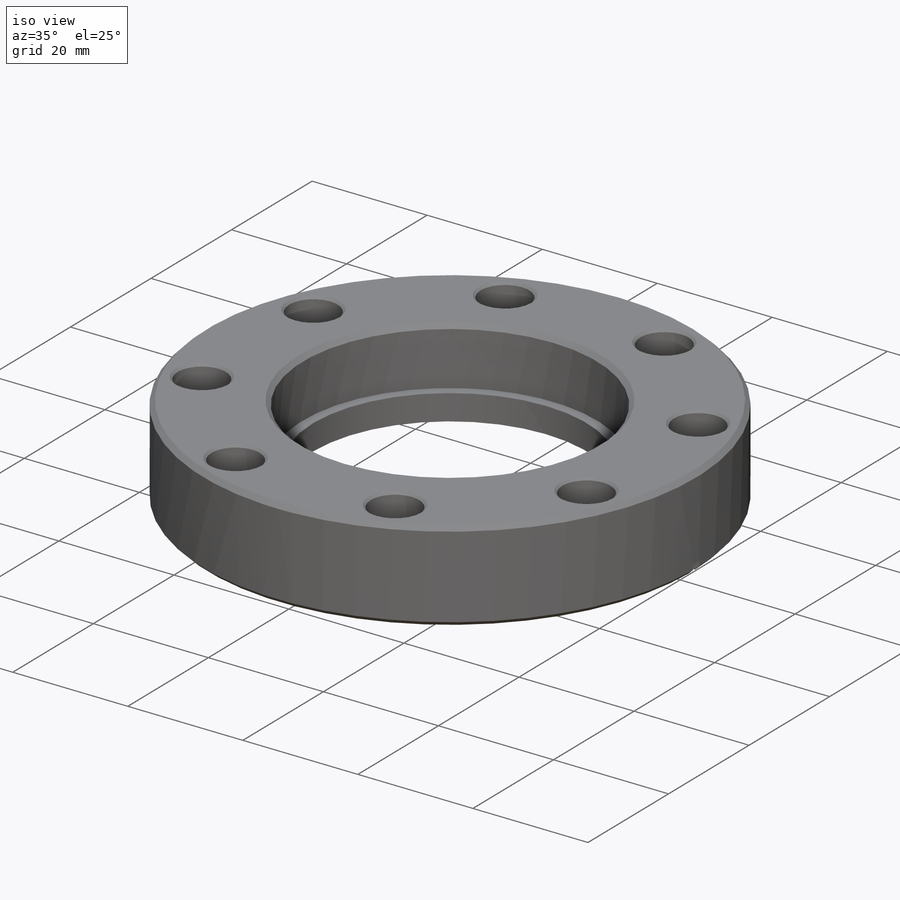
[diagram: iso view]
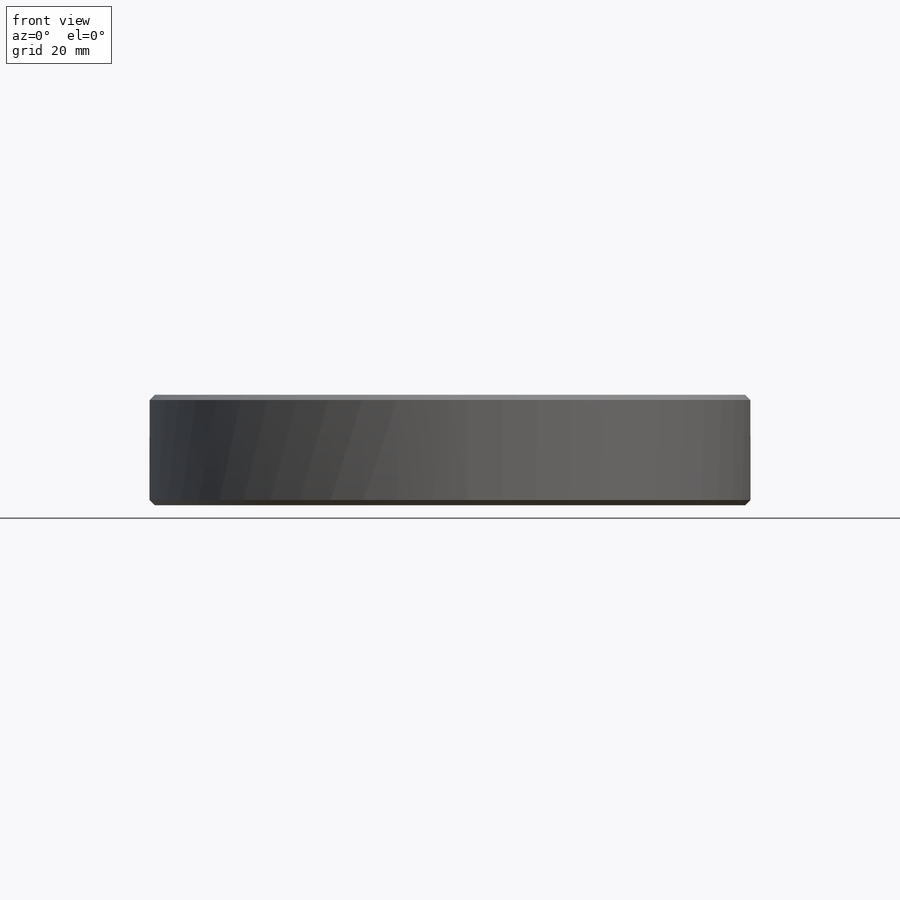
[diagram: front view]
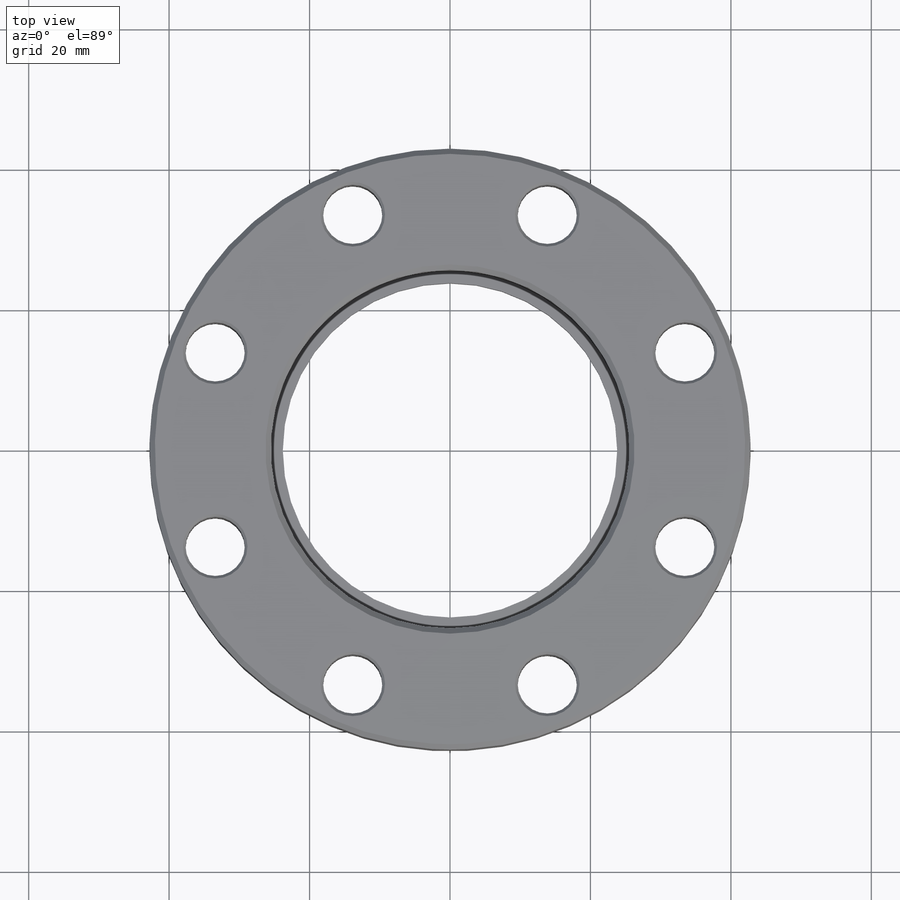
[diagram: top view]
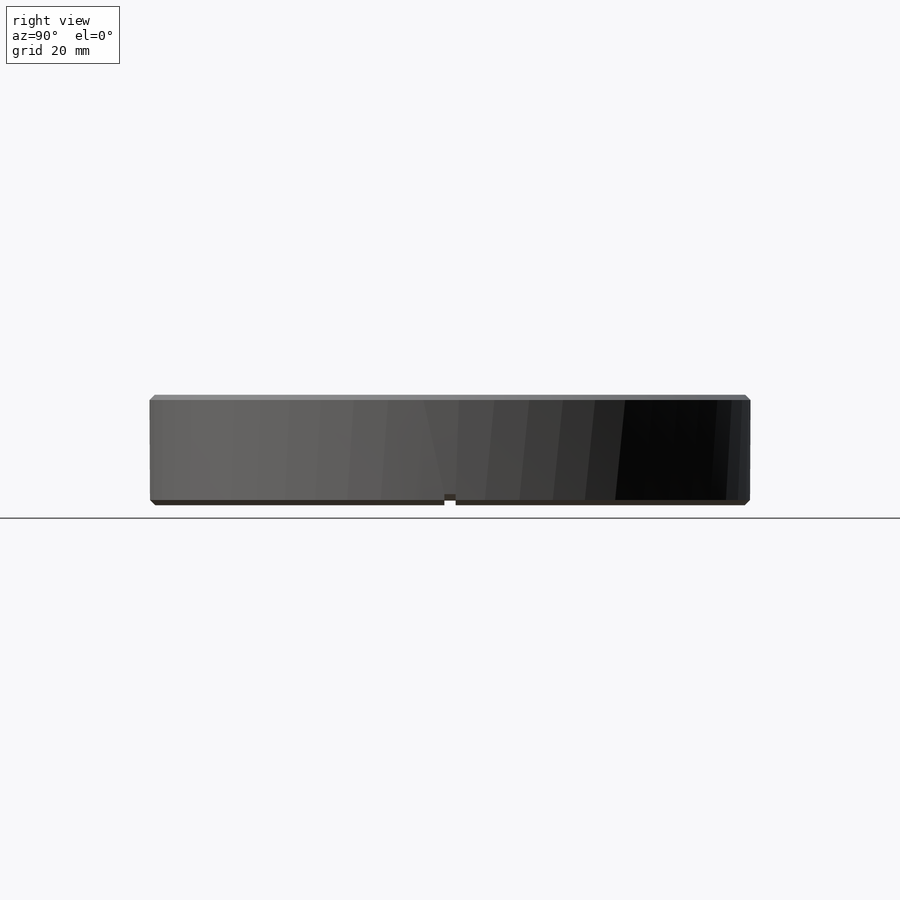
[diagram: right view]
SOLIDWORKS PART (.sldprt)
format: sldprt  version: not decoded by parser v0  size: 248,832 bytes
history: native  units: mm
features: sketch x5, cut_extrude x3, chamfer x2, material x1, extrude x1, cut_revolve x1, pattern_circular x1 (+13 scaffold rows collapsed)
feature tree (27):
  scaffold x13  (default folders/planes/origin — collapsed)
  material  "Material <not specified>"
  sketch  "Sketch1"  dims[D1=85.598mm D2=47.625mm]
  extrude  "Boss-Extrude1"  Depth=15.748mm
  sketch  "Sketch2"  dims[D1=51.054mm]
  cut_extrude  "Cut-Extrude1"  Depth=10.033mm
  chamfer  "Chamfer1"  Distance=0.762mm Angle=45deg
  sketch  "Sketch5"  dims[c1.0.9375=23.8125mm c1.D1=27.94mm c1.D2=30.9499mm c1.D3=~1.75514mm c1.D4=1.27mm c1.D5=0.6096mm c2.D1=23.8125mm c2.D2=27.94mm c2.D3=30.9499mm c2.D4=~1.75514mm c2.D5=0.6096mm c2.D6=1.27mm]
  cut_revolve  "Cut-Revolve1"  Angle=360deg
  sketch  "Sketch3"  dims[c1.D1=8.4328mm c1.D2=36.195mm c1.D3=~32.811153mm c2.D3=22.5deg]
  cut_extrude  "Cut-Extrude2"  [1 undecoded]
  chamfer  "Chamfer2"  Distance=0.381mm Angle=45deg
  pattern_circular  "CirPattern1"  Count=8 Angle=45deg
  sketch  "Sketch6"  dims[c1.D1=~0.655592mm c1.D2=~42.935292mm c2.D2=3.0deg]
  cut_extrude  "Cut-Extrude3"  Depth=1.5875mm
decode coverage: 12 of 13 modeling features carry decoded parameters
note: ~ marks probable driven/reference dimensions
note: 1 parameter value undecoded
note: suppression state not decoded; provenance and decode notes live in map.json
